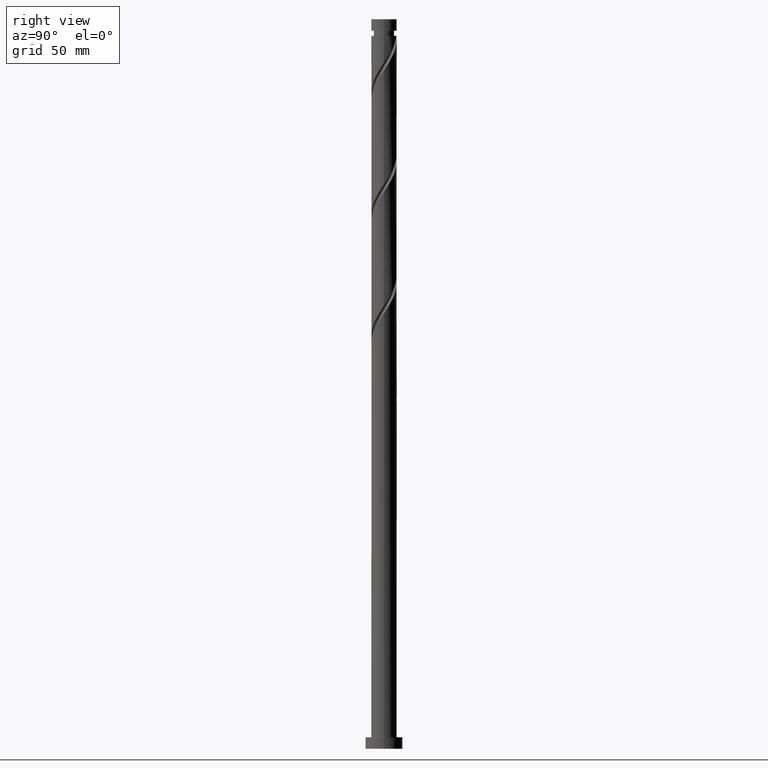
[diagram: clean part render]
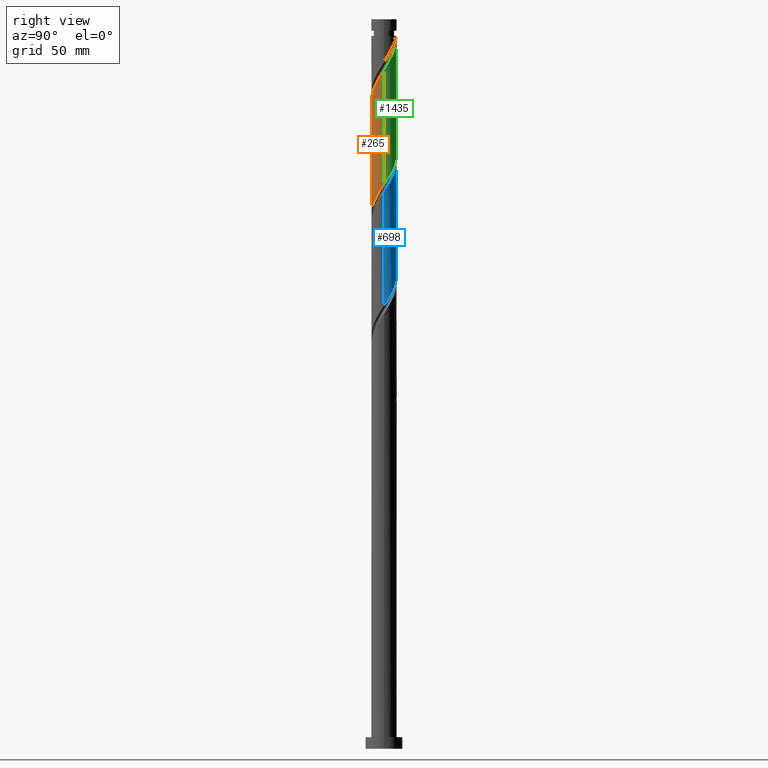
[diagram: same view with three faces highlighted in distinct colors, each labeled with its STEP entity id]
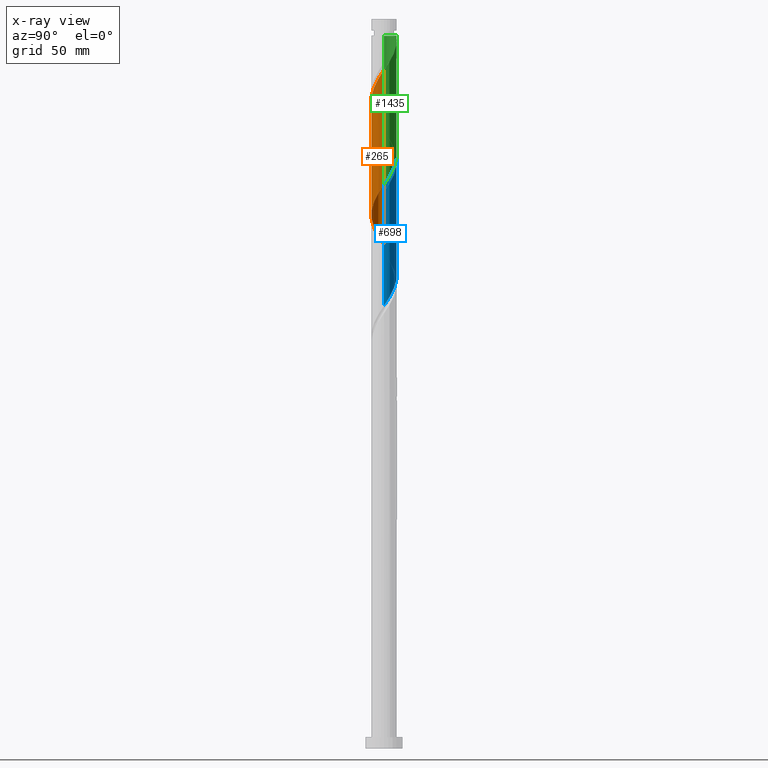
[diagram: x-ray of the same camera — body ghosted, the three highlighted faces saturated]
A machine part, right view with three faces highlighted in distinct colors.
The next image is the same camera in x-ray (body ghosted, the three faces saturated) — at least one of them is partly hidden behind the body in this view.
Their STEP definitions:

[orange] entity #265 — the highlighted cylindrical surface (edge-blend (fillet) strip) has radius 5.5 mm, axis along (-0, -0, -1).
#13 = CARTESIAN_POINT ( 'NONE',  ( -3.324731329109428923, -4.381342441448537350, 225.3007921569052883 ) ) ;
#29 = CARTESIAN_POINT ( 'NONE',  ( 5.500000000000000000, 6.735557395310442023E-16, 315.0000000000000000 ) ) ;
#73 = CARTESIAN_POINT ( 'NONE',  ( -5.498407533817768034, -0.1323427068484806235, 217.8007921569053451 ) ) ;
#96 = CARTESIAN_POINT ( 'NONE',  ( -2.504906278729428060, -4.896472662517576069, 275.9257921569053451 ) ) ;
#167 = CARTESIAN_POINT ( 'NONE',  ( 4.755949694677300776, -2.831072595522293067, 239.3632921569054020 ) ) ;
#174 = EDGE_CURVE ( 'NONE', #760, #1625, #1752, .T. ) ;
#194 = CARTESIAN_POINT ( 'NONE',  ( -4.216313785307721496, -3.531670718487787131, 223.4257921569053735 ) ) ;
#216 = DIRECTION ( 'NONE',  ( -0.000000000000000000, -0.000000000000000000, -1.000000000000000000 ) ) ;
#220 = CARTESIAN_POINT ( 'NONE',  ( -5.011315359502294342, -2.266432961200590235, 270.3007921569053451 ) ) ;
#233 = CARTESIAN_POINT ( 'NONE',  ( 5.499999999999998224, -3.343373268821879168E-15, 243.8503092348113626 ) ) ;
#265 = ADVANCED_FACE ( 'NONE', ( #975 ), #1683, .T. ) ;
#282 = ORIENTED_EDGE ( 'NONE', *, *, #1640, .F. ) ;
#300 = CARTESIAN_POINT ( 'NONE',  ( -2.266432961200587570, -5.011315359502285460, 227.1757921569052883 ) ) ;
#302 = CARTESIAN_POINT ( 'NONE',  ( -2.831072595522293067, -4.755949694677300776, 226.2382921569053451 ) ) ;
#334 = CARTESIAN_POINT ( 'NONE',  ( 4.006735188219775701, -3.818390062696567444, 237.4882921569053735 ) ) ;
#357 = CARTESIAN_POINT ( 'NONE',  ( -5.331101954539536614, -1.352535378577845337, 219.6757921569053167 ) ) ;
#361 = CARTESIAN_POINT ( 'NONE',  ( -5.499999999999998224, 2.686639233874724183E-15, 217.6003092348113910 ) ) ;
#369 = CARTESIAN_POINT ( 'NONE',  ( -0.1323427068484825109, -5.498407533817776915, 279.6757921569052883 ) ) ;
#383 = CARTESIAN_POINT ( 'NONE',  ( 0.4871790347556856915, -5.513318975672735434, 280.6132921569055156 ) ) ;
#393 = CARTESIAN_POINT ( 'NONE',  ( 5.500000000000005329, -0.06618093441512400144, 292.9009123907742378 ) ) ;
#406 = CARTESIAN_POINT ( 'NONE',  ( 0.7518644484526477711, -5.483496091962811292, 231.8632921569053451 ) ) ;
#478 = CARTESIAN_POINT ( 'NONE',  ( -5.178707817116261047, -1.953206308703043792, 220.6132921569053735 ) ) ;
#492 = CARTESIAN_POINT ( 'NONE',  ( -0.4871790347556871348, -5.513318975672725664, 229.9882921569054020 ) ) ;
#503 = CARTESIAN_POINT ( 'NONE',  ( -5.483496091962811292, -0.7518644484526477711, 218.7382921569053451 ) ) ;
#527 = CARTESIAN_POINT ( 'NONE',  ( -4.006735188219782806, -3.818390062696571441, 273.1132921569054588 ) ) ;
#536 = CARTESIAN_POINT ( 'NONE',  ( -5.390000000000005898, -1.094486180817284771, 268.4257921569053451 ) ) ;
#544 = CARTESIAN_POINT ( 'NONE',  ( 1.094486180817284549, -5.390000000000005898, 281.5507921569053451 ) ) ;
#688 = CARTESIAN_POINT ( 'NONE',  ( -1.094486180817284771, -5.389999999999997016, 229.0507921569053167 ) ) ;
#689 = CARTESIAN_POINT ( 'NONE',  ( -5.266681024327279026, -1.701793326878884738, 269.3632921569054020 ) ) ;
#700 = CARTESIAN_POINT ( 'NONE',  ( -1.953206308703049121, -5.178707817116268153, 276.8632921569053451 ) ) ;
#705 = CARTESIAN_POINT ( 'NONE',  ( 5.500000000000000000, -0.5527707983925627122, 243.0120381558477618 ) ) ;
#760 = VERTEX_POINT ( 'NONE', #1225 ) ;
#775 = CARTESIAN_POINT ( 'NONE',  ( 4.381342441448537350, -3.324731329109428923, 238.4257921569052598 ) ) ;
#787 = CARTESIAN_POINT ( 'NONE',  ( 5.500000000000005329, -1.940350557798399568E-16, 293.0012750789993561 ) ) ;
#792 = CARTESIAN_POINT ( 'NONE',  ( 2.504906278729422286, -4.896472662517569852, 234.6757921569053451 ) ) ;
#794 = CARTESIAN_POINT ( 'NONE',  ( -4.614237507918880432, -3.056606248755802113, 222.4882921569053167 ) ) ;
#811 = CARTESIAN_POINT ( 'NONE',  ( -5.500000000000005329, -6.119567143825721657E-16, 266.7512750789992992 ) ) ;
#829 = CARTESIAN_POINT ( 'NONE',  ( -4.755949694677310546, -2.831072595522295732, 271.2382921569053451 ) ) ;
#866 = DIRECTION ( 'NONE',  ( -0.000000000000000000, -0.000000000000000000, -1.000000000000000000 ) ) ;
#901 = EDGE_CURVE ( 'NONE', #1043, #1625, #1548, .T. ) ;
#908 = CARTESIAN_POINT ( 'NONE',  ( 5.266681024327271921, -1.701793326878884072, 241.2382921569053451 ) ) ;
#935 = DIRECTION ( 'NONE',  ( -0.000000000000000000, -0.000000000000000000, -1.000000000000000000 ) ) ;
#961 = LINE ( 'NONE', #29, #1268 ) ;
#970 = CARTESIAN_POINT ( 'NONE',  ( 2.266432961200590235, -5.011315359502294342, 283.4257921569052883 ) ) ;
#975 = FACE_OUTER_BOUND ( 'NONE', #1204, .T. ) ;
#1008 = CARTESIAN_POINT ( 'NONE',  ( 4.216313785307728601, -3.531670718487794680, 287.1757921569052883 ) ) ;
#1043 = VERTEX_POINT ( 'NONE', #811 ) ;
#1118 = CARTESIAN_POINT ( 'NONE',  ( 5.500000000000005329, -1.940350557798399568E-16, 293.0012750789993561 ) ) ;
#1127 = CARTESIAN_POINT ( 'NONE',  ( 4.614237507918888426, -3.056606248755808775, 288.1132921569054588 ) ) ;
#1134 = CARTESIAN_POINT ( 'NONE',  ( 4.896472662517576069, -2.504906278729428948, 289.0507921569054020 ) ) ;
#1204 = EDGE_LOOP ( 'NONE', ( #282, #1894, #1507, #1354 ) ) ;
#1225 = CARTESIAN_POINT ( 'NONE',  ( 5.499999999999998224, -3.343373268821879168E-15, 243.8503092348113626 ) ) ;
#1227 = CARTESIAN_POINT ( 'NONE',  ( -5.499999999999999112, -0.06618093441513717146, 217.7006719230364808 ) ) ;
#1250 = CARTESIAN_POINT ( 'NONE',  ( -4.896472662517569852, -2.504906278729422286, 221.5507921569053167 ) ) ;
#1259 = DIRECTION ( 'NONE',  ( -1.000000000000000000, 0.000000000000000000, 0.000000000000000000 ) ) ;
#1263 = CARTESIAN_POINT ( 'NONE',  ( -5.500000000000005329, -6.119567143825721657E-16, 266.7512750789992992 ) ) ;
#1268 = VECTOR ( 'NONE', #866, 1000.000000000000000 ) ;
#1272 = CARTESIAN_POINT ( 'NONE',  ( -1.701793326878883406, -5.266681024327271921, 228.1132921569053451 ) ) ;
#1273 = CARTESIAN_POINT ( 'NONE',  ( -4.381342441448544456, -3.324731329109432476, 272.1757921569052314 ) ) ;
#1281 = AXIS2_PLACEMENT_3D ( 'NONE', #1532, #216, #1259 ) ;
#1307 = CARTESIAN_POINT ( 'NONE',  ( 0.1323427068484802072, -5.498407533817768034, 230.9257921569053167 ) ) ;
#1354 = ORIENTED_EDGE ( 'NONE', *, *, #174, .F. ) ;
#1409 = CARTESIAN_POINT ( 'NONE',  ( 3.324731329109432476, -4.381342441448544456, 285.3007921569053451 ) ) ;
#1428 = CARTESIAN_POINT ( 'NONE',  ( -3.056606248755807886, -4.614237507918886649, 274.9882921569054020 ) ) ;
#1447 = CARTESIAN_POINT ( 'NONE',  ( 3.818390062696571441, -4.006735188219782806, 286.2382921569053451 ) ) ;
#1479 = VECTOR ( 'NONE', #935, 1000.000000000000000 ) ;
#1498 = VERTEX_POINT ( 'NONE', #787 ) ;
#1507 = ORIENTED_EDGE ( 'NONE', *, *, #901, .T. ) ;
#1522 = CARTESIAN_POINT ( 'NONE',  ( 3.531670718487787131, -4.216313785307722384, 236.5507921569053451 ) ) ;
#1532 = CARTESIAN_POINT ( 'NONE',  ( 0.000000000000000000, 0.000000000000000000, 315.0000000000000000 ) ) ;
#1547 = CARTESIAN_POINT ( 'NONE',  ( 5.011315359502285460, -2.266432961200588014, 240.3007921569052883 ) ) ;
#1548 = LINE ( 'NONE', #1680, #1479 ) ;
#1553 = CARTESIAN_POINT ( 'NONE',  ( 5.498407533817776915, -0.1323427068484828995, 292.8007921569054020 ) ) ;
#1560 = CARTESIAN_POINT ( 'NONE',  ( 5.483496091962820174, -0.7518644484526513239, 291.8632921569054020 ) ) ;
#1568 = CARTESIAN_POINT ( 'NONE',  ( 2.831072595522295732, -4.755949694677310546, 284.3632921569053451 ) ) ;
#1592 = CARTESIAN_POINT ( 'NONE',  ( -1.352535378577850000, -5.331101954539544607, 277.8007921569053451 ) ) ;
#1615 =( BOUNDED_CURVE ( )  B_SPLINE_CURVE ( 2, ( #1263, #1865, #536, #689, #220, #829, #1273, #527, #1881, #1428, #96, #700, #1592, #1705, #369, #383, #544, #1873, #970, #1568, #1409, #1447, #1008, #1127, #1134, #1890, #1731, #1560, #1553, #393, #1118 ),
 .UNSPECIFIED., .F., .T. ) 
 B_SPLINE_CURVE_WITH_KNOTS ( ( 3, 2, 2, 2, 2, 2, 2, 2, 2, 2, 2, 2, 2, 2, 2, 3 ),
 ( 0.5545303401299226387, 0.5625000000000000000, 0.5714285714285713969, 0.5803571428571427937, 0.5892857142857143016, 0.5982142857142856984, 0.6071428571428572063, 0.6160714285714286031, 0.6250000000000000000, 0.6339285714285713969, 0.6428571428571427937, 0.6517857142857143016, 0.6607142857142856984, 0.6696428571428572063, 0.6785714285714286031, 0.6795303401299224166 ),
 .UNSPECIFIED. ) 
 CURVE ( )  GEOMETRIC_REPRESENTATION_ITEM ( )  RATIONAL_B_SPLINE_CURVE ( ( 0.9079949616362034126, 0.9039886423360672385, 0.9090909090909338186, 0.9033747362666085801, 0.9090909090909338186, 0.9033747362666085801, 0.9090909090909338186, 0.9033747362666085801, 0.9090909090909338186, 0.9033747362666085801, 0.9090909090909338186, 0.9033747362666085801, 0.9090909090909338186, 0.9033747362666085801, 0.9090909090909338186, 0.9033747362666085801, 0.9090909090909338186, 0.9033747362666085801, 0.9090909090909338186, 0.9033747362666085801, 0.9090909090909338186, 0.9033747362666085801, 0.9090909090909338186, 0.9033747362666085801, 0.9090909090909338186, 0.9033747362666085801, 0.9090909090909338186, 0.9033747362666085801, 0.9090909090909338186, 0.9084770030214753822, 0.9079949616362035236 ) ) 
 REPRESENTATION_ITEM ( '' )  );
#1625 = VERTEX_POINT ( 'NONE', #361 ) ;
#1628 = CARTESIAN_POINT ( 'NONE',  ( 3.056606248755802113, -4.614237507918880432, 235.6132921569053167 ) ) ;
#1635 = CARTESIAN_POINT ( 'NONE',  ( 5.389999999999997016, -1.094486180817285437, 242.1757921569053451 ) ) ;
#1640 = EDGE_CURVE ( 'NONE', #1498, #760, #961, .T. ) ;
#1670 = CARTESIAN_POINT ( 'NONE',  ( -5.499999999999998224, 2.686639233874724183E-15, 217.6003092348113910 ) ) ;
#1680 = CARTESIAN_POINT ( 'NONE',  ( -5.500000000000000000, 0.000000000000000000, 315.0000000000000000 ) ) ;
#1683 = CYLINDRICAL_SURFACE ( 'NONE', #1281, 5.500000000000000000 ) ;
#1705 = CARTESIAN_POINT ( 'NONE',  ( -0.7518644484526509908, -5.483496091962820174, 278.7382921569054020 ) ) ;
#1731 = CARTESIAN_POINT ( 'NONE',  ( 5.331101954539544607, -1.352535378577850000, 290.9257921569052883 ) ) ;
#1752 =( BOUNDED_CURVE ( )  B_SPLINE_CURVE ( 2, ( #233, #705, #1635, #908, #1547, #167, #775, #334, #1522, #1628, #792, #1921, #1776, #406, #1307, #492, #688, #1272, #300, #302, #13, #1852, #194, #794, #1250, #478, #357, #503, #73, #1227, #1670 ),
 .UNSPECIFIED., .F., .T. ) 
 B_SPLINE_CURVE_WITH_KNOTS ( ( 3, 2, 2, 2, 2, 2, 2, 2, 2, 2, 2, 2, 2, 2, 2, 3 ),
 ( 0.5545303401299219725, 0.5625000000000000000, 0.5714285714285713969, 0.5803571428571429047, 0.5892857142857143016, 0.5982142857142856984, 0.6071428571428570953, 0.6160714285714286031, 0.6250000000000000000, 0.6339285714285713969, 0.6428571428571429047, 0.6517857142857143016, 0.6607142857142856984, 0.6696428571428570953, 0.6785714285714286031, 0.6795303401299221946 ),
 .UNSPECIFIED. ) 
 CURVE ( )  GEOMETRIC_REPRESENTATION_ITEM ( )  RATIONAL_B_SPLINE_CURVE ( ( 0.9079949616361983056, 0.9039886423360611323, 0.9090909090909280454, 0.9033747362666029179, 0.9090909090909280454, 0.9033747362666029179, 0.9090909090909280454, 0.9033747362666029179, 0.9090909090909280454, 0.9033747362666029179, 0.9090909090909280454, 0.9033747362666029179, 0.9090909090909280454, 0.9033747362666029179, 0.9090909090909280454, 0.9033747362666029179, 0.9090909090909280454, 0.9033747362666029179, 0.9090909090909280454, 0.9033747362666029179, 0.9090909090909280454, 0.9033747362666029179, 0.9090909090909280454, 0.9033747362666029179, 0.9090909090909280454, 0.9033747362666029179, 0.9090909090909280454, 0.9033747362666029179, 0.9090909090909280454, 0.9084770030214697201, 0.9079949616361979725 ) ) 
 REPRESENTATION_ITEM ( '' )  );
#1761 = EDGE_CURVE ( 'NONE', #1043, #1498, #1615, .T. ) ;
#1776 = CARTESIAN_POINT ( 'NONE',  ( 1.352535378577845337, -5.331101954539536614, 232.8007921569052883 ) ) ;
#1852 = CARTESIAN_POINT ( 'NONE',  ( -3.818390062696567444, -4.006735188219775701, 224.3632921569053735 ) ) ;
#1865 = CARTESIAN_POINT ( 'NONE',  ( -5.500000000000000888, -0.5527707983926071211, 267.5895461579630137 ) ) ;
#1873 = CARTESIAN_POINT ( 'NONE',  ( 1.701793326878884072, -5.266681024327279026, 282.4882921569054020 ) ) ;
#1881 = CARTESIAN_POINT ( 'NONE',  ( -3.531670718487794236, -4.216313785307728601, 274.0507921569052883 ) ) ;
#1890 = CARTESIAN_POINT ( 'NONE',  ( 5.178707817116268153, -1.953206308703049121, 289.9882921569052883 ) ) ;
#1894 = ORIENTED_EDGE ( 'NONE', *, *, #1761, .F. ) ;
#1921 = CARTESIAN_POINT ( 'NONE',  ( 1.953206308703043792, -5.178707817116261047, 233.7382921569054020 ) ) ;

[blue] entity #698 — the highlighted cylindrical surface (edge-blend (fillet) strip) has radius 5.5 mm, axis along (-0, -0, -1).
#3 = CARTESIAN_POINT ( 'NONE',  ( -0.1323427068484809010, 5.498407533817768034, 204.6757921569053167 ) ) ;
#14 = CARTESIAN_POINT ( 'NONE',  ( -5.498407533817776027, 0.1323427068484820668, 266.5507921569053451 ) ) ;
#43 = CARTESIAN_POINT ( 'NONE',  ( 5.500000000000006217, 6.268824879040983257E-16, 240.5012750789993561 ) ) ;
#68 = EDGE_CURVE ( 'NONE', #272, #1043, #1214, .T. ) ;
#91 = CARTESIAN_POINT ( 'NONE',  ( -5.500000000000005329, -6.119567143825721657E-16, 266.7512750789992992 ) ) ;
#94 = CARTESIAN_POINT ( 'NONE',  ( 3.531670718487794680, 4.216313785307728601, 247.8007921569053451 ) ) ;
#134 = CARTESIAN_POINT ( 'NONE',  ( -2.831072595522295732, 4.755949694677308770, 258.1132921569053451 ) ) ;
#135 = CARTESIAN_POINT ( 'NONE',  ( 5.499999999999999112, 0.06618093441513651920, 191.4506719230364808 ) ) ;
#143 = DIRECTION ( 'NONE',  ( -0.000000000000000000, -0.000000000000000000, -1.000000000000000000 ) ) ;
#153 = CARTESIAN_POINT ( 'NONE',  ( -3.818390062696571441, 4.006735188219782806, 259.9882921569053451 ) ) ;
#163 = LINE ( 'NONE', #1331, #390 ) ;
#172 = CARTESIAN_POINT ( 'NONE',  ( -1.701793326878885182, 5.266681024327279026, 256.2382921569053451 ) ) ;
#270 = CARTESIAN_POINT ( 'NONE',  ( -5.389999999999997016, 1.094486180817284771, 215.9257921569053451 ) ) ;
#272 = VERTEX_POINT ( 'NONE', #43 ) ;
#297 = VERTEX_POINT ( 'NONE', #1841 ) ;
#313 = CARTESIAN_POINT ( 'NONE',  ( -4.381342441448538239, 3.324731329109428923, 212.1757921569053167 ) ) ;
#323 = DIRECTION ( 'NONE',  ( -0.000000000000000000, -0.000000000000000000, -1.000000000000000000 ) ) ;
#328 = CARTESIAN_POINT ( 'NONE',  ( -4.896472662517576957, 2.504906278729428060, 262.8007921569054020 ) ) ;
#361 = CARTESIAN_POINT ( 'NONE',  ( -5.499999999999998224, 2.686639233874724183E-15, 217.6003092348113910 ) ) ;
#390 = VECTOR ( 'NONE', #143, 1000.000000000000000 ) ;
#439 = EDGE_LOOP ( 'NONE', ( #998, #1184, #1743, #566 ) ) ;
#445 = CARTESIAN_POINT ( 'NONE',  ( -5.499999999999996447, 0.5527707983925771451, 216.7620381558477618 ) ) ;
#454 = CARTESIAN_POINT ( 'NONE',  ( -0.4871790347556850809, 5.513318975672735434, 254.3632921569054020 ) ) ;
#455 = CARTESIAN_POINT ( 'NONE',  ( -5.499999999999998224, 2.686639233874724183E-15, 217.6003092348113910 ) ) ;
#469 = FACE_OUTER_BOUND ( 'NONE', #439, .T. ) ;
#542 = CARTESIAN_POINT ( 'NONE',  ( 2.504906278729428948, 4.896472662517576069, 249.6757921569053451 ) ) ;
#566 = ORIENTED_EDGE ( 'NONE', *, *, #901, .F. ) ;
#580 = CARTESIAN_POINT ( 'NONE',  ( 1.094486180817285881, 5.389999999999997016, 202.8007921569052883 ) ) ;
#590 = CARTESIAN_POINT ( 'NONE',  ( -5.500000000000005329, 0.06618093441510783381, 266.6509123907742378 ) ) ;
#591 = CARTESIAN_POINT ( 'NONE',  ( 4.614237507918880432, 3.056606248755801669, 196.2382921569053735 ) ) ;
#598 = CARTESIAN_POINT ( 'NONE',  ( 4.896472662517569852, 2.504906278729422286, 195.3007921569053167 ) ) ;
#615 = CARTESIAN_POINT ( 'NONE',  ( 4.216313785307722384, 3.531670718487787131, 197.1757921569053451 ) ) ;
#617 = CYLINDRICAL_SURFACE ( 'NONE', #1567, 5.500000000000000000 ) ;
#650 = CARTESIAN_POINT ( 'NONE',  ( 5.390000000000005898, 1.094486180817284326, 242.1757921569053167 ) ) ;
#698 = ADVANCED_FACE ( 'NONE', ( #469 ), #617, .T. ) ;
#740 = CARTESIAN_POINT ( 'NONE',  ( -5.011315359502285460, 2.266432961200587126, 214.0507921569053167 ) ) ;
#750 = CARTESIAN_POINT ( 'NONE',  ( -5.266681024327271921, 1.701793326878883406, 214.9882921569053167 ) ) ;
#811 = CARTESIAN_POINT ( 'NONE',  ( -5.500000000000005329, -6.119567143825721657E-16, 266.7512750789992992 ) ) ;
#813 = CARTESIAN_POINT ( 'NONE',  ( 5.266681024327279026, 1.701793326878884072, 243.1132921569054304 ) ) ;
#889 = CARTESIAN_POINT ( 'NONE',  ( 2.266432961200588014, 5.011315359502285460, 200.9257921569053451 ) ) ;
#901 = EDGE_CURVE ( 'NONE', #1043, #1625, #1548, .T. ) ;
#914 = CARTESIAN_POINT ( 'NONE',  ( 1.352535378577850222, 5.331101954539544607, 251.5507921569053167 ) ) ;
#915 = CARTESIAN_POINT ( 'NONE',  ( -1.352535378577846004, 5.331101954539536614, 206.5507921569052598 ) ) ;
#926 = DIRECTION ( 'NONE',  ( -1.000000000000000000, 0.000000000000000000, 0.000000000000000000 ) ) ;
#935 = DIRECTION ( 'NONE',  ( -0.000000000000000000, -0.000000000000000000, -1.000000000000000000 ) ) ;
#955 = CARTESIAN_POINT ( 'NONE',  ( 4.755949694677310546, 2.831072595522295732, 244.9882921569054020 ) ) ;
#996 = CARTESIAN_POINT ( 'NONE',  ( 1.953206308703050009, 5.178707817116267265, 250.6132921569054588 ) ) ;
#998 = ORIENTED_EDGE ( 'NONE', *, *, #68, .F. ) ;
#1023 = CARTESIAN_POINT ( 'NONE',  ( -3.531670718487788019, 4.216313785307721496, 210.3007921569052598 ) ) ;
#1040 = CARTESIAN_POINT ( 'NONE',  ( -4.006735188219775701, 3.818390062696565668, 211.2382921569054020 ) ) ;
#1043 = VERTEX_POINT ( 'NONE', #811 ) ;
#1073 = CARTESIAN_POINT ( 'NONE',  ( -3.324731329109432920, 4.381342441448544456, 259.0507921569053451 ) ) ;
#1078 = CARTESIAN_POINT ( 'NONE',  ( 5.500000000000005329, 0.5527707983925873592, 241.3395461579629853 ) ) ;
#1179 = CARTESIAN_POINT ( 'NONE',  ( -1.094486180817284326, 5.390000000000005898, 255.3007921569053167 ) ) ;
#1180 = CARTESIAN_POINT ( 'NONE',  ( 1.701793326878884516, 5.266681024327271921, 201.8632921569053735 ) ) ;
#1184 = ORIENTED_EDGE ( 'NONE', *, *, #1245, .T. ) ;
#1195 = CARTESIAN_POINT ( 'NONE',  ( -0.7518644484526483263, 5.483496091962813068, 205.6132921569053451 ) ) ;
#1205 = CARTESIAN_POINT ( 'NONE',  ( 0.7518644484526517680, 5.483496091962820174, 252.4882921569053735 ) ) ;
#1214 =( BOUNDED_CURVE ( )  B_SPLINE_CURVE ( 2, ( #1791, #1078, #650, #813, #1682, #955, #1531, #1735, #94, #1417, #542, #996, #914, #1205, #1476, #454, #1179, #172, #1816, #134, #1073, #153, #1349, #1662, #328, #1622, #1795, #1330, #14, #590, #91 ),
 .UNSPECIFIED., .F., .T. ) 
 B_SPLINE_CURVE_WITH_KNOTS ( ( 3, 2, 2, 2, 2, 2, 2, 2, 2, 2, 2, 2, 2, 2, 2, 3 ),
 ( 0.4295303401299223611, 0.4375000000000000000, 0.4464285714285713969, 0.4553571428571429047, 0.4642857142857143016, 0.4732142857142856984, 0.4821428571428570953, 0.4910714285714286031, 0.5000000000000000000, 0.5089285714285713969, 0.5178571428571427937, 0.5267857142857143016, 0.5357142857142856984, 0.5446428571428572063, 0.5535714285714286031, 0.5545303401299226387 ),
 .UNSPECIFIED. ) 
 CURVE ( )  GEOMETRIC_REPRESENTATION_ITEM ( )  RATIONAL_B_SPLINE_CURVE ( ( 0.9079949616362035236, 0.9039886423360670165, 0.9090909090909338186, 0.9033747362666085801, 0.9090909090909338186, 0.9033747362666085801, 0.9090909090909338186, 0.9033747362666085801, 0.9090909090909338186, 0.9033747362666085801, 0.9090909090909338186, 0.9033747362666085801, 0.9090909090909338186, 0.9033747362666085801, 0.9090909090909338186, 0.9033747362666085801, 0.9090909090909338186, 0.9033747362666085801, 0.9090909090909338186, 0.9033747362666085801, 0.9090909090909338186, 0.9033747362666085801, 0.9090909090909338186, 0.9033747362666085801, 0.9090909090909338186, 0.9033747362666085801, 0.9090909090909338186, 0.9033747362666085801, 0.9090909090909338186, 0.9084770030214752712, 0.9079949616362034126 ) ) 
 REPRESENTATION_ITEM ( '' )  );
#1245 = EDGE_CURVE ( 'NONE', #272, #297, #163, .T. ) ;
#1258 = EDGE_CURVE ( 'NONE', #1625, #297, #1883, .T. ) ;
#1330 = CARTESIAN_POINT ( 'NONE',  ( -5.483496091962820174, 0.7518644484526507688, 265.6132921569054020 ) ) ;
#1331 = CARTESIAN_POINT ( 'NONE',  ( 5.500000000000000000, 6.735557395310442023E-16, 315.0000000000000000 ) ) ;
#1341 = CARTESIAN_POINT ( 'NONE',  ( -1.953206308703044236, 5.178707817116261047, 207.4882921569053451 ) ) ;
#1349 = CARTESIAN_POINT ( 'NONE',  ( -4.216313785307728601, 3.531670718487794236, 260.9257921569052883 ) ) ;
#1350 = CARTESIAN_POINT ( 'NONE',  ( 5.178707817116261047, 1.953206308703043570, 194.3632921569053735 ) ) ;
#1357 = CARTESIAN_POINT ( 'NONE',  ( 3.324731329109428923, 4.381342441448537350, 199.0507921569052883 ) ) ;
#1417 = CARTESIAN_POINT ( 'NONE',  ( 3.056606248755808775, 4.614237507918885761, 248.7382921569054020 ) ) ;
#1459 = CARTESIAN_POINT ( 'NONE',  ( 2.831072595522293955, 4.755949694677300776, 199.9882921569054020 ) ) ;
#1467 = CARTESIAN_POINT ( 'NONE',  ( 5.483496091962811292, 0.7518644484526474381, 192.4882921569053735 ) ) ;
#1476 = CARTESIAN_POINT ( 'NONE',  ( 0.1323427068484833435, 5.498407533817776027, 253.4257921569053735 ) ) ;
#1479 = VECTOR ( 'NONE', #935, 1000.000000000000000 ) ;
#1500 = CARTESIAN_POINT ( 'NONE',  ( 3.818390062696567444, 4.006735188219774813, 198.1132921569053451 ) ) ;
#1502 = CARTESIAN_POINT ( 'NONE',  ( 0.000000000000000000, 0.000000000000000000, 315.0000000000000000 ) ) ;
#1531 = CARTESIAN_POINT ( 'NONE',  ( 4.381342441448545344, 3.324731329109432032, 245.9257921569053167 ) ) ;
#1548 = LINE ( 'NONE', #1680, #1479 ) ;
#1567 = AXIS2_PLACEMENT_3D ( 'NONE', #1502, #323, #926 ) ;
#1603 = CARTESIAN_POINT ( 'NONE',  ( 0.4871790347556864131, 5.513318975672725664, 203.7382921569053451 ) ) ;
#1622 = CARTESIAN_POINT ( 'NONE',  ( -5.178707817116268153, 1.953206308703048233, 263.7382921569054020 ) ) ;
#1623 = CARTESIAN_POINT ( 'NONE',  ( -2.504906278729422731, 4.896472662517569852, 208.4257921569053167 ) ) ;
#1625 = VERTEX_POINT ( 'NONE', #361 ) ;
#1662 = CARTESIAN_POINT ( 'NONE',  ( -4.614237507918886649, 3.056606248755807442, 261.8632921569054020 ) ) ;
#1680 = CARTESIAN_POINT ( 'NONE',  ( -5.500000000000000000, 0.000000000000000000, 315.0000000000000000 ) ) ;
#1682 = CARTESIAN_POINT ( 'NONE',  ( 5.011315359502294342, 2.266432961200590235, 244.0507921569053451 ) ) ;
#1735 = CARTESIAN_POINT ( 'NONE',  ( 4.006735188219782806, 3.818390062696570553, 246.8632921569054304 ) ) ;
#1743 = ORIENTED_EDGE ( 'NONE', *, *, #1258, .F. ) ;
#1777 = CARTESIAN_POINT ( 'NONE',  ( 5.498407533817768034, 0.1323427068484800129, 191.5507921569053451 ) ) ;
#1785 = CARTESIAN_POINT ( 'NONE',  ( 5.331101954539537502, 1.352535378577845115, 193.4257921569053167 ) ) ;
#1791 = CARTESIAN_POINT ( 'NONE',  ( 5.500000000000006217, 6.268824879040982270E-16, 240.5012750789993561 ) ) ;
#1795 = CARTESIAN_POINT ( 'NONE',  ( -5.331101954539544607, 1.352535378577849334, 264.6757921569054020 ) ) ;
#1796 = CARTESIAN_POINT ( 'NONE',  ( 5.499999999999998224, -3.343373268821879168E-15, 191.3503092348113910 ) ) ;
#1816 = CARTESIAN_POINT ( 'NONE',  ( -2.266432961200590235, 5.011315359502294342, 257.1757921569053451 ) ) ;
#1841 = CARTESIAN_POINT ( 'NONE',  ( 5.499999999999998224, -3.343373268821879168E-15, 191.3503092348113910 ) ) ;
#1883 =( BOUNDED_CURVE ( )  B_SPLINE_CURVE ( 2, ( #455, #445, #270, #750, #740, #1910, #313, #1040, #1023, #1922, #1623, #1341, #915, #1195, #3, #1603, #580, #1180, #889, #1459, #1357, #1500, #615, #591, #598, #1350, #1785, #1467, #1777, #135, #1796 ),
 .UNSPECIFIED., .F., .T. ) 
 B_SPLINE_CURVE_WITH_KNOTS ( ( 3, 2, 2, 2, 2, 2, 2, 2, 2, 2, 2, 2, 2, 2, 2, 3 ),
 ( 0.6795303401299221946, 0.6875000000000000000, 0.6964285714285713969, 0.7053571428571429047, 0.7142857142857143016, 0.7232142857142856984, 0.7321428571428570953, 0.7410714285714286031, 0.7500000000000000000, 0.7589285714285713969, 0.7678571428571429047, 0.7767857142857143016, 0.7857142857142856984, 0.7946428571428570953, 0.8035714285714286031, 0.8045303401299221946 ),
 .UNSPECIFIED. ) 
 CURVE ( )  GEOMETRIC_REPRESENTATION_ITEM ( )  RATIONAL_B_SPLINE_CURVE ( ( 0.9079949616361979725, 0.9039886423360613543, 0.9090909090909280454, 0.9033747362666029179, 0.9090909090909280454, 0.9033747362666029179, 0.9090909090909280454, 0.9033747362666029179, 0.9090909090909280454, 0.9033747362666029179, 0.9090909090909280454, 0.9033747362666029179, 0.9090909090909280454, 0.9033747362666029179, 0.9090909090909280454, 0.9033747362666029179, 0.9090909090909280454, 0.9033747362666029179, 0.9090909090909280454, 0.9033747362666029179, 0.9090909090909280454, 0.9033747362666029179, 0.9090909090909280454, 0.9033747362666029179, 0.9090909090909280454, 0.9033747362666029179, 0.9090909090909280454, 0.9033747362666029179, 0.9090909090909280454, 0.9084770030214697201, 0.9079949616361979725 ) ) 
 REPRESENTATION_ITEM ( '' )  );
#1910 = CARTESIAN_POINT ( 'NONE',  ( -4.755949694677300776, 2.831072595522292623, 213.1132921569053735 ) ) ;
#1922 = CARTESIAN_POINT ( 'NONE',  ( -3.056606248755802113, 4.614237507918880432, 209.3632921569053451 ) ) ;

[green] entity #1435 — the highlighted cylindrical surface (edge-blend (fillet) strip) has radius 5.5 mm, axis along (-0, -0, -1).
#7 = CARTESIAN_POINT ( 'NONE',  ( 4.006735188219782806, 3.818390062696570553, 299.3632921569054588 ) ) ;
#15 = DIRECTION ( 'NONE',  ( -0.000000000000000000, -0.000000000000000000, -1.000000000000000000 ) ) ;
#29 = CARTESIAN_POINT ( 'NONE',  ( 5.500000000000000000, 6.735557395310442023E-16, 315.0000000000000000 ) ) ;
#34 = CARTESIAN_POINT ( 'NONE',  ( -0.4871790347557159451, 5.513318975672735434, 306.8632921569054020 ) ) ;
#42 = CARTESIAN_POINT ( 'NONE',  ( 0.1323427068484833435, 5.498407533817776027, 305.9257921569052883 ) ) ;
#51 = EDGE_LOOP ( 'NONE', ( #1610, #1470, #1747, #215, #1363 ) ) ;
#52 = AXIS2_PLACEMENT_3D ( 'NONE', #1113, #943, #1529 ) ;
#88 = CIRCLE ( 'NONE', #52, 5.499999999999973355 ) ;
#89 = CARTESIAN_POINT ( 'NONE',  ( -5.389999999999997016, 1.094486180817284771, 268.4257921569054020 ) ) ;
#107 = CARTESIAN_POINT ( 'NONE',  ( 5.178707817116261047, 1.953206308703043570, 246.8632921569053167 ) ) ;
#139 = EDGE_CURVE ( 'NONE', #1498, #1511, #496, .T. ) ;
#159 = CARTESIAN_POINT ( 'NONE',  ( 3.531670718487794680, 4.216313785307728601, 300.3007921569054020 ) ) ;
#173 = CYLINDRICAL_SURFACE ( 'NONE', #592, 5.500000000000000000 ) ;
#215 = ORIENTED_EDGE ( 'NONE', *, *, #1292, .F. ) ;
#231 = CARTESIAN_POINT ( 'NONE',  ( 2.831072595522293955, 4.755949694677300776, 252.4882921569053735 ) ) ;
#248 = CARTESIAN_POINT ( 'NONE',  ( 2.266432961200588014, 5.011315359502285460, 253.4257921569053167 ) ) ;
#259 = CARTESIAN_POINT ( 'NONE',  ( 5.499999999999998224, 0.06618093441515185416, 243.9506719230364240 ) ) ;
#285 =( BOUNDED_CURVE ( )  B_SPLINE_CURVE ( 2, ( #1582, #1594, #89, #1129, #1136, #1412, #559, #1725, #1002, #1265, #1275, #548, #1733, #1715, #1562, #1158, #1755, #859, #248, #231, #1555, #838, #386, #1440, #407, #107, #991, #712, #1294, #259, #1189 ),
 .UNSPECIFIED., .F., .T. ) 
 B_SPLINE_CURVE_WITH_KNOTS ( ( 3, 2, 2, 2, 2, 2, 2, 2, 2, 2, 2, 2, 2, 2, 2, 3 ),
 ( 0.4295303401299222501, 0.4375000000000000000, 0.4464285714285714524, 0.4553571428571428492, 0.4642857142857143016, 0.4732142857142856984, 0.4821428571428571508, 0.4910714285714285476, 0.5000000000000000000, 0.5089285714285713969, 0.5178571428571429047, 0.5267857142857143016, 0.5357142857142856984, 0.5446428571428570953, 0.5535714285714286031, 0.5545303401299219725 ),
 .UNSPECIFIED. ) 
 CURVE ( )  GEOMETRIC_REPRESENTATION_ITEM ( )  RATIONAL_B_SPLINE_CURVE ( ( 0.9079949616361979725, 0.9039886423360613543, 0.9090909090909280454, 0.9033747362666029179, 0.9090909090909280454, 0.9033747362666029179, 0.9090909090909280454, 0.9033747362666029179, 0.9090909090909280454, 0.9033747362666029179, 0.9090909090909280454, 0.9033747362666029179, 0.9090909090909280454, 0.9033747362666029179, 0.9090909090909280454, 0.9033747362666029179, 0.9090909090909280454, 0.9033747362666029179, 0.9090909090909280454, 0.9033747362666029179, 0.9090909090909280454, 0.9033747362666029179, 0.9090909090909280454, 0.9033747362666029179, 0.9090909090909280454, 0.9033747362666029179, 0.9090909090909280454, 0.9033747362666029179, 0.9090909090909280454, 0.9084770030214699421, 0.9079949616361983056 ) ) 
 REPRESENTATION_ITEM ( '' )  );
#373 = CARTESIAN_POINT ( 'NONE',  ( 5.266681024327279026, 1.701793326878884072, 295.6132921569054020 ) ) ;
#386 = CARTESIAN_POINT ( 'NONE',  ( 4.216313785307722384, 3.531670718487787131, 249.6757921569053451 ) ) ;
#407 = CARTESIAN_POINT ( 'NONE',  ( 4.896472662517569852, 2.504906278729422286, 247.8007921569053451 ) ) ;
#474 = DIRECTION ( 'NONE',  ( -1.000000000000000000, 0.000000000000000000, 0.000000000000000000 ) ) ;
#496 =( BOUNDED_CURVE ( )  B_SPLINE_CURVE ( 2, ( #706, #550, #1709, #373, #531, #1122, #1125, #7, #159, #619, #766, #631, #1219, #526, #42, #34, #948 ),
 .UNSPECIFIED., .F., .T. ) 
 B_SPLINE_CURVE_WITH_KNOTS ( ( 3, 2, 2, 2, 2, 2, 2, 2, 3 ),
 ( 0.6795303401299224166, 0.6875000000000000000, 0.6964285714285715079, 0.7053571428571429047, 0.7142857142857145236, 0.7232142857142860315, 0.7321428571428575394, 0.7410714285714290472, 0.7500000000000004441 ),
 .UNSPECIFIED. ) 
 CURVE ( )  GEOMETRIC_REPRESENTATION_ITEM ( )  RATIONAL_B_SPLINE_CURVE ( ( 0.9079949616362035236, 0.9039886423360671275, 0.9090909090909338186, 0.9033747362666085801, 0.9090909090909338186, 0.9033747362666085801, 0.9090909090909338186, 0.9033747362666085801, 0.9090909090909338186, 0.9033747362666085801, 0.9090909090909338186, 0.9033747362666085801, 0.9090909090909338186, 0.9033747362666085801, 0.9090909090909338186, 0.9033747362666083580, 0.9090909090909340406 ) ) 
 REPRESENTATION_ITEM ( '' )  );
#526 = CARTESIAN_POINT ( 'NONE',  ( 0.7518644484526517680, 5.483496091962820174, 304.9882921569053451 ) ) ;
#531 = CARTESIAN_POINT ( 'NONE',  ( 5.011315359502294342, 2.266432961200590235, 296.5507921569054020 ) ) ;
#548 = CARTESIAN_POINT ( 'NONE',  ( -1.953206308703044236, 5.178707817116261047, 259.9882921569053451 ) ) ;
#550 = CARTESIAN_POINT ( 'NONE',  ( 5.500000000000002665, 0.5527707983925910229, 293.8395461579630137 ) ) ;
#559 = CARTESIAN_POINT ( 'NONE',  ( -4.381342441448538239, 3.324731329109428923, 264.6757921569053451 ) ) ;
#592 = AXIS2_PLACEMENT_3D ( 'NONE', #1846, #1401, #474 ) ;
#605 = CARTESIAN_POINT ( 'NONE',  ( -5.500000000000000000, 0.000000000000000000, 315.0000000000000000 ) ) ;
#619 = CARTESIAN_POINT ( 'NONE',  ( 3.056606248755808775, 4.614237507918885761, 301.2382921569054020 ) ) ;
#631 = CARTESIAN_POINT ( 'NONE',  ( 1.953206308703050009, 5.178707817116267265, 303.1132921569054020 ) ) ;
#646 = VECTOR ( 'NONE', #15, 1000.000000000000000 ) ;
#706 = CARTESIAN_POINT ( 'NONE',  ( 5.500000000000005329, -1.940350557798399568E-16, 293.0012750789993561 ) ) ;
#712 = CARTESIAN_POINT ( 'NONE',  ( 5.483496091962811292, 0.7518644484526474381, 244.9882921569053735 ) ) ;
#760 = VERTEX_POINT ( 'NONE', #1225 ) ;
#766 = CARTESIAN_POINT ( 'NONE',  ( 2.504906278729428948, 4.896472662517576069, 302.1757921569053451 ) ) ;
#787 = CARTESIAN_POINT ( 'NONE',  ( 5.500000000000005329, -1.940350557798399568E-16, 293.0012750789993561 ) ) ;
#819 = VERTEX_POINT ( 'NONE', #1376 ) ;
#838 = CARTESIAN_POINT ( 'NONE',  ( 3.818390062696567444, 4.006735188219774813, 250.6132921569053735 ) ) ;
#859 = CARTESIAN_POINT ( 'NONE',  ( 1.701793326878884516, 5.266681024327271921, 254.3632921569052883 ) ) ;
#866 = DIRECTION ( 'NONE',  ( -0.000000000000000000, -0.000000000000000000, -1.000000000000000000 ) ) ;
#881 = LINE ( 'NONE', #605, #646 ) ;
#923 = EDGE_CURVE ( 'NONE', #1173, #1511, #88, .T. ) ;
#943 = DIRECTION ( 'NONE',  ( -0.000000000000000000, -0.000000000000000000, -1.000000000000000000 ) ) ;
#948 = CARTESIAN_POINT ( 'NONE',  ( -1.094486180817317411, 5.390000000000641833, 307.8007921569052314 ) ) ;
#961 = LINE ( 'NONE', #29, #1268 ) ;
#991 = CARTESIAN_POINT ( 'NONE',  ( 5.331101954539537502, 1.352535378577845115, 245.9257921569052598 ) ) ;
#1002 = CARTESIAN_POINT ( 'NONE',  ( -3.531670718487788019, 4.216313785307721496, 262.8007921569053451 ) ) ;
#1113 = CARTESIAN_POINT ( 'NONE',  ( 0.000000000000000000, 0.000000000000000000, 307.8007921569053451 ) ) ;
#1122 = CARTESIAN_POINT ( 'NONE',  ( 4.755949694677310546, 2.831072595522295732, 297.4882921569054020 ) ) ;
#1125 = CARTESIAN_POINT ( 'NONE',  ( 4.381342441448545344, 3.324731329109432032, 298.4257921569051746 ) ) ;
#1129 = CARTESIAN_POINT ( 'NONE',  ( -5.266681024327271921, 1.701793326878883406, 267.4882921569054020 ) ) ;
#1136 = CARTESIAN_POINT ( 'NONE',  ( -5.011315359502285460, 2.266432961200587126, 266.5507921569052883 ) ) ;
#1158 = CARTESIAN_POINT ( 'NONE',  ( 0.4871790347556864131, 5.513318975672725664, 256.2382921569053451 ) ) ;
#1173 = VERTEX_POINT ( 'NONE', #1308 ) ;
#1177 = EDGE_CURVE ( 'NONE', #819, #760, #285, .T. ) ;
#1189 = CARTESIAN_POINT ( 'NONE',  ( 5.499999999999998224, -3.343373268821879168E-15, 243.8503092348113626 ) ) ;
#1219 = CARTESIAN_POINT ( 'NONE',  ( 1.352535378577850222, 5.331101954539544607, 304.0507921569054020 ) ) ;
#1223 = CARTESIAN_POINT ( 'NONE',  ( -1.094486180817317411, 5.390000000000641833, 307.8007921569052314 ) ) ;
#1225 = CARTESIAN_POINT ( 'NONE',  ( 5.499999999999998224, -3.343373268821879168E-15, 243.8503092348113626 ) ) ;
#1265 = CARTESIAN_POINT ( 'NONE',  ( -3.056606248755802113, 4.614237507918880432, 261.8632921569052883 ) ) ;
#1268 = VECTOR ( 'NONE', #866, 1000.000000000000000 ) ;
#1275 = CARTESIAN_POINT ( 'NONE',  ( -2.504906278729422731, 4.896472662517569852, 260.9257921569052314 ) ) ;
#1292 = EDGE_CURVE ( 'NONE', #1173, #819, #881, .T. ) ;
#1294 = CARTESIAN_POINT ( 'NONE',  ( 5.498407533817768034, 0.1323427068484800129, 244.0507921569052883 ) ) ;
#1308 = CARTESIAN_POINT ( 'NONE',  ( -5.499999999999973355, 0.000000000000000000, 307.8007921569053451 ) ) ;
#1363 = ORIENTED_EDGE ( 'NONE', *, *, #923, .T. ) ;
#1376 = CARTESIAN_POINT ( 'NONE',  ( -5.499999999999998224, 1.873184576951543434E-15, 270.1003092348113910 ) ) ;
#1401 = DIRECTION ( 'NONE',  ( -0.000000000000000000, -0.000000000000000000, -1.000000000000000000 ) ) ;
#1412 = CARTESIAN_POINT ( 'NONE',  ( -4.755949694677300776, 2.831072595522292623, 265.6132921569054020 ) ) ;
#1435 = ADVANCED_FACE ( 'NONE', ( #1544 ), #173, .T. ) ;
#1440 = CARTESIAN_POINT ( 'NONE',  ( 4.614237507918880432, 3.056606248755801669, 248.7382921569054020 ) ) ;
#1470 = ORIENTED_EDGE ( 'NONE', *, *, #1640, .T. ) ;
#1498 = VERTEX_POINT ( 'NONE', #787 ) ;
#1511 = VERTEX_POINT ( 'NONE', #1223 ) ;
#1529 = DIRECTION ( 'NONE',  ( -1.000000000000000000, 0.000000000000000000, 0.000000000000000000 ) ) ;
#1544 = FACE_OUTER_BOUND ( 'NONE', #51, .T. ) ;
#1555 = CARTESIAN_POINT ( 'NONE',  ( 3.324731329109428923, 4.381342441448537350, 251.5507921569053451 ) ) ;
#1562 = CARTESIAN_POINT ( 'NONE',  ( -0.1323427068484809010, 5.498407533817768034, 257.1757921569053451 ) ) ;
#1582 = CARTESIAN_POINT ( 'NONE',  ( -5.499999999999998224, 1.873184576951543434E-15, 270.1003092348113910 ) ) ;
#1594 = CARTESIAN_POINT ( 'NONE',  ( -5.499999999999995559, 0.5527707983925843616, 269.2620381558477334 ) ) ;
#1610 = ORIENTED_EDGE ( 'NONE', *, *, #139, .F. ) ;
#1640 = EDGE_CURVE ( 'NONE', #1498, #760, #961, .T. ) ;
#1709 = CARTESIAN_POINT ( 'NONE',  ( 5.390000000000005898, 1.094486180817284326, 294.6757921569052883 ) ) ;
#1715 = CARTESIAN_POINT ( 'NONE',  ( -0.7518644484526483263, 5.483496091962813068, 258.1132921569053451 ) ) ;
#1725 = CARTESIAN_POINT ( 'NONE',  ( -4.006735188219775701, 3.818390062696565668, 263.7382921569053451 ) ) ;
#1733 = CARTESIAN_POINT ( 'NONE',  ( -1.352535378577846004, 5.331101954539536614, 259.0507921569052883 ) ) ;
#1747 = ORIENTED_EDGE ( 'NONE', *, *, #1177, .F. ) ;
#1755 = CARTESIAN_POINT ( 'NONE',  ( 1.094486180817285881, 5.389999999999997016, 255.3007921569053167 ) ) ;
#1846 = CARTESIAN_POINT ( 'NONE',  ( 0.000000000000000000, 0.000000000000000000, 315.0000000000000000 ) ) ;